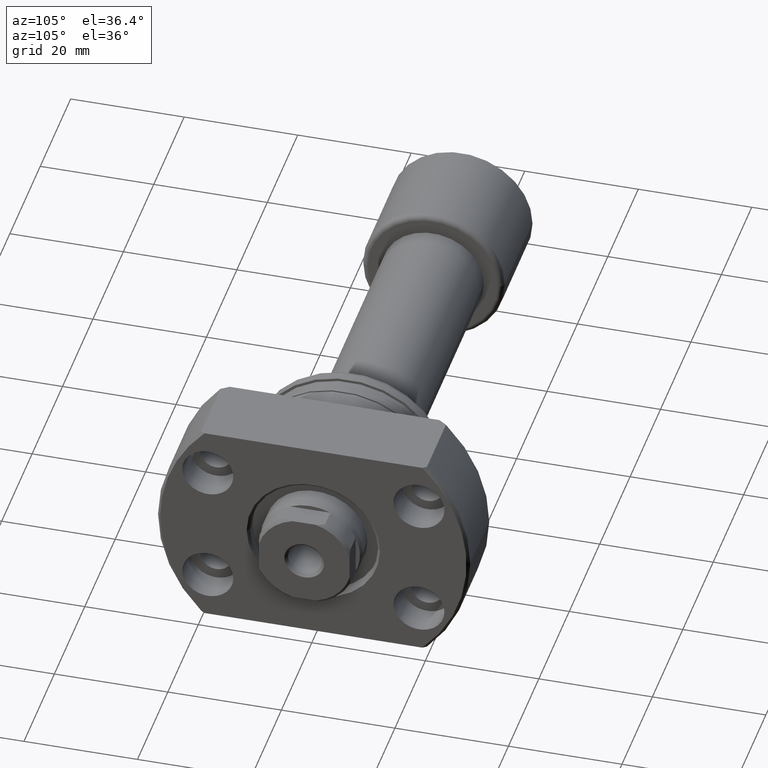
[diagram: clean part render]
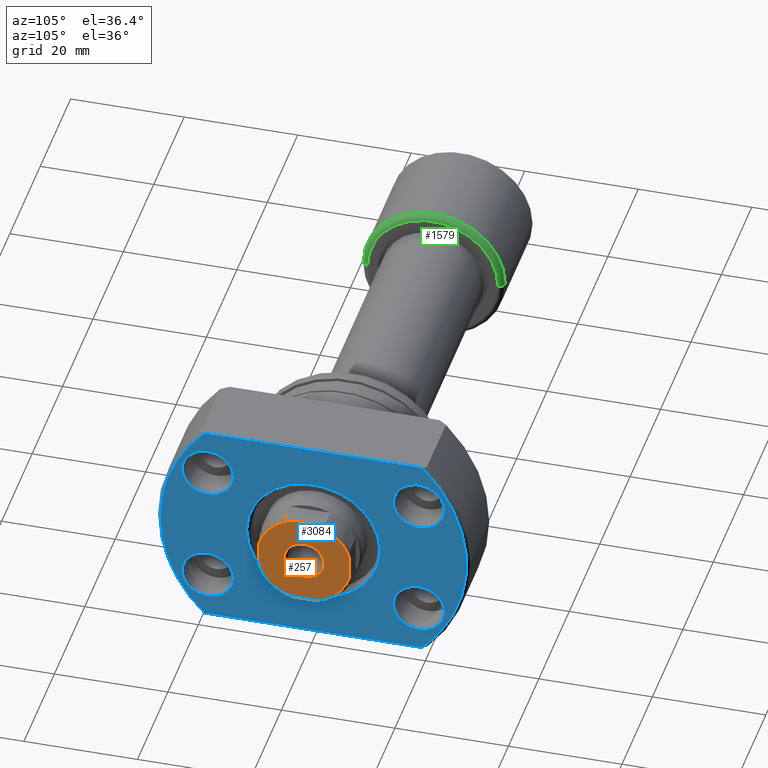
[diagram: same view with three faces highlighted in distinct colors, each labeled with its STEP entity id]
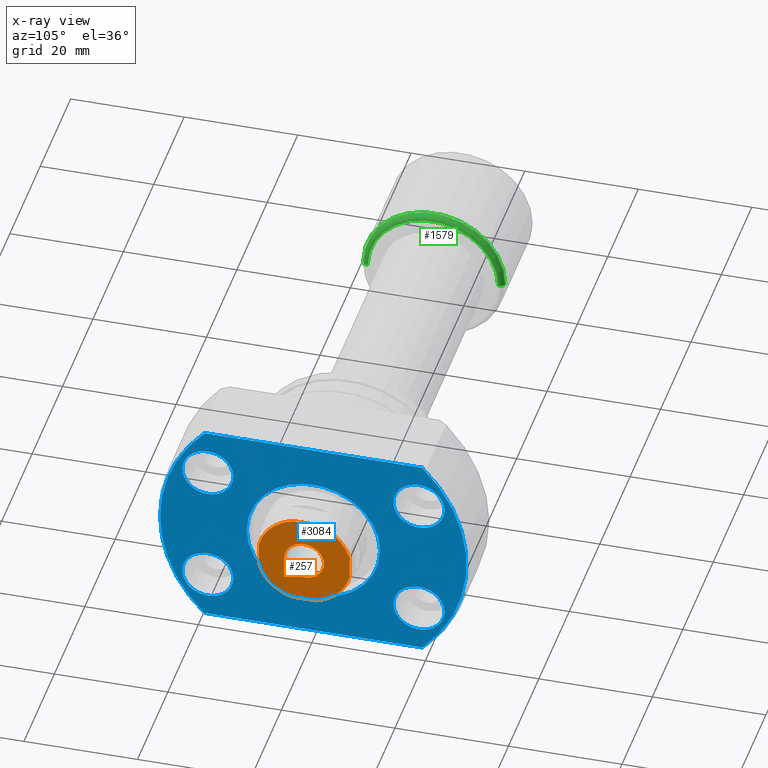
[diagram: x-ray of the same camera — body ghosted, the three highlighted faces saturated]
A machine part, auxiliary view with three faces highlighted in distinct colors.
The next image is the same camera in x-ray (body ghosted, the three faces saturated) — at least one of them is partly hidden behind the body in this view.
Their STEP definitions:

[orange] entity #257 — the highlighted planar face has unit normal (-1, -0, 0).
#7 = DIRECTION ( 'NONE',  ( 0.000000000000000000, -1.000000000000000000, 0.000000000000000000 ) ) ;
#100 = CARTESIAN_POINT ( 'NONE',  ( 105.0000000000000142, 2.015564437074592874, -8.000000000000000000 ) ) ;
#231 = EDGE_CURVE ( 'NONE', #1759, #914, #2962, .T. ) ;
#244 = CIRCLE ( 'NONE', #2367, 8.250000000000058620 ) ;
#257 = ADVANCED_FACE ( 'NONE', ( #2586, #3080 ), #2778, .F. ) ;
#260 = CARTESIAN_POINT ( 'NONE',  ( 104.9999999999999574, -2.015564437074657267, -8.000000000000001776 ) ) ;
#303 = CARTESIAN_POINT ( 'NONE',  ( 105.0000000000001279, 7.999999999998260058, 3.544361719689459456 ) ) ;
#304 = EDGE_LOOP ( 'NONE', ( #826, #1653, #1670, #2841, #1205, #2479, #573, #2881 ) ) ;
#356 = VERTEX_POINT ( 'NONE', #260 ) ;
#396 = VERTEX_POINT ( 'NONE', #2988 ) ;
#411 = ORIENTED_EDGE ( 'NONE', *, *, #934, .T. ) ;
#433 = CIRCLE ( 'NONE', #803, 8.249999999999987566 ) ;
#454 = CARTESIAN_POINT ( 'NONE',  ( 104.9999999999999858, -1.740128039466842086E-12, 0.000000000000000000 ) ) ;
#530 = DIRECTION ( 'NONE',  ( -1.000000000000000000, -1.069542322069065801E-17, 0.000000000000000000 ) ) ;
#567 = CARTESIAN_POINT ( 'NONE',  ( 104.9999999999999858, 1.123019438172518867E-15, 0.000000000000000000 ) ) ;
#573 = ORIENTED_EDGE ( 'NONE', *, *, #1849, .F. ) ;
#626 = CARTESIAN_POINT ( 'NONE',  ( 105.0000000000000426, 3.544361719687719958, -8.000000000000000000 ) ) ;
#668 = LINE ( 'NONE', #2658, #2839 ) ;
#715 = DIRECTION ( 'NONE',  ( 1.000000000000000000, 1.069542322069065801E-17, 0.000000000000000000 ) ) ;
#771 = CARTESIAN_POINT ( 'NONE',  ( 104.9999999999998437, -8.000000000001744382, 2.015564437067797421 ) ) ;
#776 = EDGE_CURVE ( 'NONE', #396, #1376, #244, .T. ) ;
#803 = AXIS2_PLACEMENT_3D ( 'NONE', #567, #2485, #1997 ) ;
#815 = CARTESIAN_POINT ( 'NONE',  ( 104.9999999999999858, 1.123019438172518867E-15, 0.000000000000000000 ) ) ;
#826 = ORIENTED_EDGE ( 'NONE', *, *, #2949, .F. ) ;
#853 = VECTOR ( 'NONE', #873, 1000.000000000000000 ) ;
#873 = DIRECTION ( 'NONE',  ( -1.566181886088483408E-14, -1.000000000000000000, -2.447159197013255325E-16 ) ) ;
#914 = VERTEX_POINT ( 'NONE', #3078 ) ;
#934 = EDGE_CURVE ( 'NONE', #914, #1759, #1865, .T. ) ;
#1010 = CARTESIAN_POINT ( 'NONE',  ( 105.0000000000001279, 7.999999999998261835, -2.015564437081499349 ) ) ;
#1021 = CARTESIAN_POINT ( 'NONE',  ( 105.0000000000000142, 2.015564437074881088, 8.000000000000001776 ) ) ;
#1056 = EDGE_CURVE ( 'NONE', #2276, #2868, #3064, .T. ) ;
#1066 = VERTEX_POINT ( 'NONE', #100 ) ;
#1205 = ORIENTED_EDGE ( 'NONE', *, *, #1771, .F. ) ;
#1261 = DIRECTION ( 'NONE',  ( -1.000000000000000000, -1.069542322069065801E-17, -0.000000000000000000 ) ) ;
#1331 = DIRECTION ( 'NONE',  ( 0.000000000000000000, -1.000000000000000000, 0.000000000000000000 ) ) ;
#1376 = VERTEX_POINT ( 'NONE', #1021 ) ;
#1480 = AXIS2_PLACEMENT_3D ( 'NONE', #815, #2323, #2840 ) ;
#1499 = AXIS2_PLACEMENT_3D ( 'NONE', #1615, #2148, #1587 ) ;
#1587 = DIRECTION ( 'NONE',  ( 0.000000000000000000, -1.000000000000000000, -8.881784197001252323E-16 ) ) ;
#1615 = CARTESIAN_POINT ( 'NONE',  ( 104.9999999999999858, 1.123019438172518867E-15, 0.000000000000000000 ) ) ;
#1653 = ORIENTED_EDGE ( 'NONE', *, *, #1868, .T. ) ;
#1663 = ORIENTED_EDGE ( 'NONE', *, *, #231, .T. ) ;
#1670 = ORIENTED_EDGE ( 'NONE', *, *, #2354, .F. ) ;
#1759 = VERTEX_POINT ( 'NONE', #2916 ) ;
#1771 = EDGE_CURVE ( 'NONE', #2276, #1376, #668, .T. ) ;
#1816 = CARTESIAN_POINT ( 'NONE',  ( 104.9999999999999858, -5.004653406798891484E-34, 0.000000000000000000 ) ) ;
#1849 = EDGE_CURVE ( 'NONE', #1938, #2868, #2012, .T. ) ;
#1865 = CIRCLE ( 'NONE', #2702, 3.500000000000347722 ) ;
#1868 = EDGE_CURVE ( 'NONE', #1066, #3212, #433, .T. ) ;
#1938 = VERTEX_POINT ( 'NONE', #2269 ) ;
#1951 = CARTESIAN_POINT ( 'NONE',  ( 104.9999999999999858, 1.123019438172518867E-15, 0.000000000000000000 ) ) ;
#1973 = DIRECTION ( 'NONE',  ( 0.000000000000000000, -1.000000000000000000, 1.776356839400250465E-15 ) ) ;
#1994 = CARTESIAN_POINT ( 'NONE',  ( 104.9999999999999574, -2.015564437074718107, 8.000000000000001776 ) ) ;
#1997 = DIRECTION ( 'NONE',  ( 0.000000000000000000, -1.000000000000000000, 0.000000000000000000 ) ) ;
#2005 = VECTOR ( 'NONE', #2978, 1000.000000000000000 ) ;
#2012 = LINE ( 'NONE', #2251, #3001 ) ;
#2097 = CIRCLE ( 'NONE', #1480, 8.250000000000005329 ) ;
#2107 = AXIS2_PLACEMENT_3D ( 'NONE', #454, #1261, #7 ) ;
#2148 = DIRECTION ( 'NONE',  ( 1.000000000000000000, 1.069542322069065801E-17, 0.000000000000000000 ) ) ;
#2251 = CARTESIAN_POINT ( 'NONE',  ( 104.9999999999998437, -8.000000000001740830, -3.544361719689460788 ) ) ;
#2269 = CARTESIAN_POINT ( 'NONE',  ( 104.9999999999999858, -8.000000000001740830, -2.015564437067741910 ) ) ;
#2274 = DIRECTION ( 'NONE',  ( -1.000000000000000000, -1.069542322069065801E-17, -0.000000000000000000 ) ) ;
#2276 = VERTEX_POINT ( 'NONE', #1994 ) ;
#2323 = DIRECTION ( 'NONE',  ( 1.000000000000000000, 1.069542322069065801E-17, 0.000000000000000000 ) ) ;
#2330 = EDGE_LOOP ( 'NONE', ( #1663, #411 ) ) ;
#2354 = EDGE_CURVE ( 'NONE', #396, #3212, #2541, .T. ) ;
#2367 = AXIS2_PLACEMENT_3D ( 'NONE', #1951, #715, #1973 ) ;
#2393 = EDGE_CURVE ( 'NONE', #1938, #356, #2097, .T. ) ;
#2437 = DIRECTION ( 'NONE',  ( 1.566181886088483408E-14, 1.000000000000000000, 2.447159197013255325E-16 ) ) ;
#2479 = ORIENTED_EDGE ( 'NONE', *, *, #1056, .T. ) ;
#2485 = DIRECTION ( 'NONE',  ( 1.000000000000000000, 1.069542322069065801E-17, 0.000000000000000000 ) ) ;
#2524 = DIRECTION ( 'NONE',  ( 1.069542322069065801E-17, -1.000000000000000000, 0.000000000000000000 ) ) ;
#2541 = LINE ( 'NONE', #303, #2005 ) ;
#2567 = CARTESIAN_POINT ( 'NONE',  ( 104.9999999999999858, -1.740128039466842086E-12, 0.000000000000000000 ) ) ;
#2586 = FACE_BOUND ( 'NONE', #2330, .T. ) ;
#2658 = CARTESIAN_POINT ( 'NONE',  ( 104.9999999999999289, -3.544361719691198953, 8.000000000000000000 ) ) ;
#2702 = AXIS2_PLACEMENT_3D ( 'NONE', #2567, #2274, #1331 ) ;
#2751 = DIRECTION ( 'NONE',  ( 0.000000000000000000, -4.894318394026510651E-16, 1.000000000000000000 ) ) ;
#2778 = PLANE ( 'NONE',  #2852 ) ;
#2839 = VECTOR ( 'NONE', #2437, 1000.000000000000000 ) ;
#2840 = DIRECTION ( 'NONE',  ( 0.000000000000000000, -1.000000000000000000, 0.000000000000000000 ) ) ;
#2841 = ORIENTED_EDGE ( 'NONE', *, *, #776, .T. ) ;
#2852 = AXIS2_PLACEMENT_3D ( 'NONE', #1816, #530, #2524 ) ;
#2863 = LINE ( 'NONE', #626, #853 ) ;
#2868 = VERTEX_POINT ( 'NONE', #771 ) ;
#2881 = ORIENTED_EDGE ( 'NONE', *, *, #2393, .T. ) ;
#2916 = CARTESIAN_POINT ( 'NONE',  ( 104.9999999999999858, 3.499999999998602451, 0.000000000000000000 ) ) ;
#2949 = EDGE_CURVE ( 'NONE', #1066, #356, #2863, .T. ) ;
#2962 = CIRCLE ( 'NONE', #2107, 3.500000000000347722 ) ;
#2978 = DIRECTION ( 'NONE',  ( 0.000000000000000000, 2.447159197013255325E-16, -1.000000000000000000 ) ) ;
#2988 = CARTESIAN_POINT ( 'NONE',  ( 104.9999999999999858, 7.999999999998260058, 2.015564437081796445 ) ) ;
#3001 = VECTOR ( 'NONE', #2751, 1000.000000000000000 ) ;
#3064 = CIRCLE ( 'NONE', #1499, 8.250000000000021316 ) ;
#3078 = CARTESIAN_POINT ( 'NONE',  ( 104.9999999999999858, -3.500000000002209788, 4.286263797016311477E-16 ) ) ;
#3080 = FACE_OUTER_BOUND ( 'NONE', #304, .T. ) ;
#3212 = VERTEX_POINT ( 'NONE', #1010 ) ;

[blue] entity #3084 — the highlighted planar face has unit normal (-1, -0, 0).
#12 = CARTESIAN_POINT ( 'NONE',  ( 26.50000000000000355, -19.18332609325086580, -19.00000000000001066 ) ) ;
#26 = CARTESIAN_POINT ( 'NONE',  ( 26.50000000000000355, -11.75000000000071054, 1.438959988998140752E-15 ) ) ;
#45 = AXIS2_PLACEMENT_3D ( 'NONE', #2413, #199, #371 ) ;
#60 = DIRECTION ( 'NONE',  ( -0.000000000000000000, 1.000000000000000000, 0.000000000000000000 ) ) ;
#66 = ORIENTED_EDGE ( 'NONE', *, *, #1732, .F. ) ;
#164 = DIRECTION ( 'NONE',  ( -9.242617352055502386E-18, 1.000000000000000000, -0.000000000000000000 ) ) ;
#178 = ORIENTED_EDGE ( 'NONE', *, *, #3205, .F. ) ;
#179 = DIRECTION ( 'NONE',  ( 1.000000000000000000, -2.883293662278287419E-14, -3.155443620884046521E-30 ) ) ;
#190 = VERTEX_POINT ( 'NONE', #2623 ) ;
#199 = DIRECTION ( 'NONE',  ( 1.000000000000000000, -2.886466111666351885E-14, 0.000000000000000000 ) ) ;
#216 = EDGE_CURVE ( 'NONE', #1336, #835, #3162, .T. ) ;
#227 = DIRECTION ( 'NONE',  ( -1.000000000000000000, -9.242617352055502386E-18, 0.000000000000000000 ) ) ;
#233 = AXIS2_PLACEMENT_3D ( 'NONE', #1159, #227, #1203 ) ;
#296 = AXIS2_PLACEMENT_3D ( 'NONE', #1379, #1143, #3166 ) ;
#297 = LINE ( 'NONE', #1999, #578 ) ;
#298 = CARTESIAN_POINT ( 'NONE',  ( 26.50000000000000355, 2.449293598294708386E-16, 0.000000000000000000 ) ) ;
#335 = CIRCLE ( 'NONE', #2575, 4.500000000000000888 ) ;
#348 = ORIENTED_EDGE ( 'NONE', *, *, #2205, .T. ) ;
#371 = DIRECTION ( 'NONE',  ( 2.852656382717415620E-14, 1.000000000000000000, 0.000000000000000000 ) ) ;
#374 = CARTESIAN_POINT ( 'NONE',  ( 26.49999999999959499, -14.10000000000076881, -10.75000000000000000 ) ) ;
#400 = VERTEX_POINT ( 'NONE', #1257 ) ;
#401 = CARTESIAN_POINT ( 'NONE',  ( 26.49999999999946354, -18.60000000000076881, 10.75000000000000000 ) ) ;
#416 = FACE_BOUND ( 'NONE', #1969, .T. ) ;
#436 = EDGE_LOOP ( 'NONE', ( #620, #678 ) ) ;
#467 = CARTESIAN_POINT ( 'NONE',  ( 26.50000000000000355, 2.449293598294708386E-16, 0.000000000000000000 ) ) ;
#517 = EDGE_LOOP ( 'NONE', ( #1780, #178 ) ) ;
#529 = DIRECTION ( 'NONE',  ( 1.000000000000000000, -2.883293662278287419E-14, -3.155443620884046521E-30 ) ) ;
#552 = DIRECTION ( 'NONE',  ( 1.000000000000000000, -2.883293662278287419E-14, -3.155443620884046521E-30 ) ) ;
#566 = EDGE_CURVE ( 'NONE', #1413, #1120, #1809, .T. ) ;
#578 = VECTOR ( 'NONE', #60, 1000.000000000000000 ) ;
#581 = EDGE_CURVE ( 'NONE', #2255, #964, #2168, .T. ) ;
#620 = ORIENTED_EDGE ( 'NONE', *, *, #2293, .F. ) ;
#638 = DIRECTION ( 'NONE',  ( 1.000000000000000000, -2.883293662278287419E-14, -3.155443620884046521E-30 ) ) ;
#643 = DIRECTION ( 'NONE',  ( 9.242617352055502386E-18, -1.000000000000000000, 0.000000000000000000 ) ) ;
#678 = ORIENTED_EDGE ( 'NONE', *, *, #581, .F. ) ;
#688 = EDGE_CURVE ( 'NONE', #1418, #3177, #766, .T. ) ;
#707 = EDGE_CURVE ( 'NONE', #400, #2825, #2905, .T. ) ;
#747 = CARTESIAN_POINT ( 'NONE',  ( 26.50000000000041211, 14.09999999999923403, -10.75000000000000000 ) ) ;
#766 = CIRCLE ( 'NONE', #296, 11.74999999999932498 ) ;
#784 = DIRECTION ( 'NONE',  ( 0.000000000000000000, 1.000000000000000000, 0.000000000000000000 ) ) ;
#789 = CARTESIAN_POINT ( 'NONE',  ( 26.49999999999959499, -14.10000000000076881, 10.75000000000000000 ) ) ;
#808 = CARTESIAN_POINT ( 'NONE',  ( 26.50000000000066791, 23.09999999999923403, 10.75000000000000000 ) ) ;
#823 = DIRECTION ( 'NONE',  ( 1.000000000000000000, 9.242617352055502386E-18, -0.000000000000000000 ) ) ;
#834 = DIRECTION ( 'NONE',  ( 2.852656382717415620E-14, 1.000000000000000000, 0.000000000000000000 ) ) ;
#835 = VERTEX_POINT ( 'NONE', #2196 ) ;
#836 = DIRECTION ( 'NONE',  ( 1.000000000000000000, 9.242617352055502386E-18, -0.000000000000000000 ) ) ;
#858 = AXIS2_PLACEMENT_3D ( 'NONE', #467, #1767, #784 ) ;
#913 = ORIENTED_EDGE ( 'NONE', *, *, #950, .T. ) ;
#924 = CIRCLE ( 'NONE', #1814, 27.00000000000000000 ) ;
#933 = CARTESIAN_POINT ( 'NONE',  ( 26.50000000000041211, 14.09999999999923403, 10.75000000000000000 ) ) ;
#950 = EDGE_CURVE ( 'NONE', #835, #1828, #1764, .T. ) ;
#964 = VERTEX_POINT ( 'NONE', #808 ) ;
#978 = AXIS2_PLACEMENT_3D ( 'NONE', #2589, #552, #3057 ) ;
#1013 = EDGE_CURVE ( 'NONE', #190, #3083, #924, .T. ) ;
#1033 = CARTESIAN_POINT ( 'NONE',  ( 26.50000000000054001, 18.59999999999923403, 10.75000000000000000 ) ) ;
#1048 = DIRECTION ( 'NONE',  ( 2.852656382717415620E-14, 1.000000000000000000, 0.000000000000000000 ) ) ;
#1069 = CIRCLE ( 'NONE', #233, 11.74999999999932498 ) ;
#1120 = VERTEX_POINT ( 'NONE', #374 ) ;
#1143 = DIRECTION ( 'NONE',  ( -1.000000000000000000, -9.242617352055502386E-18, 0.000000000000000000 ) ) ;
#1158 = CARTESIAN_POINT ( 'NONE',  ( 26.50000000000000355, 11.74999999999861622, 0.000000000000000000 ) ) ;
#1159 = CARTESIAN_POINT ( 'NONE',  ( 26.50000000000000355, -7.069515144664183387E-13, 0.000000000000000000 ) ) ;
#1175 = CIRCLE ( 'NONE', #2681, 4.500000000000000888 ) ;
#1203 = DIRECTION ( 'NONE',  ( 0.000000000000000000, -1.000000000000000000, 0.000000000000000000 ) ) ;
#1214 = CARTESIAN_POINT ( 'NONE',  ( 26.50000000000000355, 19.18332609325086935, 19.00000000000000711 ) ) ;
#1257 = CARTESIAN_POINT ( 'NONE',  ( 26.49999999999933564, -23.10000000000076881, 10.75000000000000000 ) ) ;
#1282 = CARTESIAN_POINT ( 'NONE',  ( 26.50000000000066791, 23.09999999999923403, -10.75000000000000000 ) ) ;
#1283 = AXIS2_PLACEMENT_3D ( 'NONE', #2430, #1382, #643 ) ;
#1336 = VERTEX_POINT ( 'NONE', #2786 ) ;
#1379 = CARTESIAN_POINT ( 'NONE',  ( 26.50000000000000355, -7.069515144664183387E-13, 0.000000000000000000 ) ) ;
#1380 = ORIENTED_EDGE ( 'NONE', *, *, #566, .F. ) ;
#1382 = DIRECTION ( 'NONE',  ( -1.000000000000000000, -9.242617352055502386E-18, 0.000000000000000000 ) ) ;
#1398 = FACE_BOUND ( 'NONE', #2657, .T. ) ;
#1404 = EDGE_CURVE ( 'NONE', #1336, #3083, #297, .T. ) ;
#1413 = VERTEX_POINT ( 'NONE', #2285 ) ;
#1418 = VERTEX_POINT ( 'NONE', #26 ) ;
#1419 = VERTEX_POINT ( 'NONE', #1282 ) ;
#1434 = FACE_OUTER_BOUND ( 'NONE', #2666, .T. ) ;
#1447 = ORIENTED_EDGE ( 'NONE', *, *, #1404, .F. ) ;
#1479 = CARTESIAN_POINT ( 'NONE',  ( 26.50000000000054001, 18.59999999999923403, -10.75000000000000000 ) ) ;
#1529 = DIRECTION ( 'NONE',  ( 2.852656382717415620E-14, 1.000000000000000000, 0.000000000000000000 ) ) ;
#1565 = EDGE_CURVE ( 'NONE', #1120, #1413, #2885, .T. ) ;
#1598 = CARTESIAN_POINT ( 'NONE',  ( 26.49999999999946354, -18.60000000000076881, -10.75000000000000000 ) ) ;
#1652 = CARTESIAN_POINT ( 'NONE',  ( 26.50000000000000355, -27.00000000000000000, -19.00000000000001066 ) ) ;
#1683 = EDGE_CURVE ( 'NONE', #1419, #2349, #2634, .T. ) ;
#1696 = VECTOR ( 'NONE', #164, 1000.000000000000000 ) ;
#1704 = DIRECTION ( 'NONE',  ( 2.852656382717415620E-14, 1.000000000000000000, 0.000000000000000000 ) ) ;
#1732 = EDGE_CURVE ( 'NONE', #2825, #400, #2504, .T. ) ;
#1739 = AXIS2_PLACEMENT_3D ( 'NONE', #1963, #179, #2968 ) ;
#1764 = CIRCLE ( 'NONE', #3170, 27.00000000000000000 ) ;
#1767 = DIRECTION ( 'NONE',  ( 1.000000000000000000, 9.242617352055502386E-18, -0.000000000000000000 ) ) ;
#1780 = ORIENTED_EDGE ( 'NONE', *, *, #1683, .F. ) ;
#1786 = ORIENTED_EDGE ( 'NONE', *, *, #688, .T. ) ;
#1809 = CIRCLE ( 'NONE', #978, 4.500000000000000888 ) ;
#1814 = AXIS2_PLACEMENT_3D ( 'NONE', #298, #823, #1824 ) ;
#1824 = DIRECTION ( 'NONE',  ( 0.000000000000000000, 1.000000000000000000, 0.000000000000000000 ) ) ;
#1828 = VERTEX_POINT ( 'NONE', #12 ) ;
#1892 = FACE_BOUND ( 'NONE', #517, .T. ) ;
#1893 = AXIS2_PLACEMENT_3D ( 'NONE', #1598, #2328, #834 ) ;
#1940 = DIRECTION ( 'NONE',  ( 1.000000000000000000, -2.883293662278287419E-14, -3.155443620884046521E-30 ) ) ;
#1963 = CARTESIAN_POINT ( 'NONE',  ( 26.49999999999946354, -18.60000000000076881, 10.75000000000000000 ) ) ;
#1969 = EDGE_LOOP ( 'NONE', ( #348, #1786 ) ) ;
#1999 = CARTESIAN_POINT ( 'NONE',  ( 26.50000000000000355, 19.88089535207168623, 19.00000000000001066 ) ) ;
#2020 = AXIS2_PLACEMENT_3D ( 'NONE', #401, #638, #3093 ) ;
#2030 = ORIENTED_EDGE ( 'NONE', *, *, #2519, .T. ) ;
#2168 = CIRCLE ( 'NONE', #45, 4.500000000000000888 ) ;
#2196 = CARTESIAN_POINT ( 'NONE',  ( 26.50000000000000355, -27.00000000000000355, 0.000000000000000000 ) ) ;
#2198 = FACE_BOUND ( 'NONE', #2491, .T. ) ;
#2205 = EDGE_CURVE ( 'NONE', #3177, #1418, #1069, .T. ) ;
#2255 = VERTEX_POINT ( 'NONE', #933 ) ;
#2285 = CARTESIAN_POINT ( 'NONE',  ( 26.49999999999933564, -23.10000000000076881, -10.75000000000000000 ) ) ;
#2293 = EDGE_CURVE ( 'NONE', #964, #2255, #1175, .T. ) ;
#2328 = DIRECTION ( 'NONE',  ( 1.000000000000000000, -2.883293662278287419E-14, -3.155443620884046521E-30 ) ) ;
#2349 = VERTEX_POINT ( 'NONE', #747 ) ;
#2395 = ORIENTED_EDGE ( 'NONE', *, *, #216, .T. ) ;
#2413 = CARTESIAN_POINT ( 'NONE',  ( 26.50000000000054001, 18.59999999999923403, 10.75000000000000000 ) ) ;
#2430 = CARTESIAN_POINT ( 'NONE',  ( 26.50000000000000355, -27.00000000000000000, 0.000000000000000000 ) ) ;
#2467 = CARTESIAN_POINT ( 'NONE',  ( 26.50000000000054001, 18.59999999999923403, -10.75000000000000000 ) ) ;
#2491 = EDGE_LOOP ( 'NONE', ( #66, #3027 ) ) ;
#2504 = CIRCLE ( 'NONE', #1739, 4.500000000000000888 ) ;
#2519 = EDGE_CURVE ( 'NONE', #1828, #190, #2862, .T. ) ;
#2535 = CARTESIAN_POINT ( 'NONE',  ( 26.50000000000000355, 2.449293598294708386E-16, 0.000000000000000000 ) ) ;
#2575 = AXIS2_PLACEMENT_3D ( 'NONE', #1479, #529, #1529 ) ;
#2589 = CARTESIAN_POINT ( 'NONE',  ( 26.49999999999946354, -18.60000000000076881, -10.75000000000000000 ) ) ;
#2621 = PLANE ( 'NONE',  #1283 ) ;
#2623 = CARTESIAN_POINT ( 'NONE',  ( 26.50000000000000355, 19.18332609325086580, -19.00000000000001066 ) ) ;
#2634 = CIRCLE ( 'NONE', #2748, 4.500000000000000888 ) ;
#2657 = EDGE_LOOP ( 'NONE', ( #3105, #1380 ) ) ;
#2666 = EDGE_LOOP ( 'NONE', ( #1447, #2395, #913, #2030, #2926 ) ) ;
#2681 = AXIS2_PLACEMENT_3D ( 'NONE', #1033, #2797, #1048 ) ;
#2748 = AXIS2_PLACEMENT_3D ( 'NONE', #2467, #1940, #1704 ) ;
#2786 = CARTESIAN_POINT ( 'NONE',  ( 26.50000000000000355, -19.18332609325086224, 19.00000000000000711 ) ) ;
#2797 = DIRECTION ( 'NONE',  ( 1.000000000000000000, -2.886466111666351885E-14, 0.000000000000000000 ) ) ;
#2810 = DIRECTION ( 'NONE',  ( 0.000000000000000000, 1.000000000000000000, 0.000000000000000000 ) ) ;
#2825 = VERTEX_POINT ( 'NONE', #789 ) ;
#2862 = LINE ( 'NONE', #1652, #1696 ) ;
#2885 = CIRCLE ( 'NONE', #1893, 4.500000000000000888 ) ;
#2905 = CIRCLE ( 'NONE', #2020, 4.500000000000000888 ) ;
#2926 = ORIENTED_EDGE ( 'NONE', *, *, #1013, .T. ) ;
#2968 = DIRECTION ( 'NONE',  ( 2.852656382717415620E-14, 1.000000000000000000, 0.000000000000000000 ) ) ;
#3027 = ORIENTED_EDGE ( 'NONE', *, *, #707, .F. ) ;
#3057 = DIRECTION ( 'NONE',  ( 2.852656382717415620E-14, 1.000000000000000000, 0.000000000000000000 ) ) ;
#3083 = VERTEX_POINT ( 'NONE', #1214 ) ;
#3084 = ADVANCED_FACE ( 'NONE', ( #416, #3184, #2198, #1398, #1892, #1434 ), #2621, .F. ) ;
#3093 = DIRECTION ( 'NONE',  ( 2.852656382717415620E-14, 1.000000000000000000, 0.000000000000000000 ) ) ;
#3105 = ORIENTED_EDGE ( 'NONE', *, *, #1565, .F. ) ;
#3162 = CIRCLE ( 'NONE', #858, 27.00000000000000000 ) ;
#3166 = DIRECTION ( 'NONE',  ( 0.000000000000000000, -1.000000000000000000, 0.000000000000000000 ) ) ;
#3170 = AXIS2_PLACEMENT_3D ( 'NONE', #2535, #836, #2810 ) ;
#3177 = VERTEX_POINT ( 'NONE', #1158 ) ;
#3184 = FACE_BOUND ( 'NONE', #436, .T. ) ;
#3205 = EDGE_CURVE ( 'NONE', #2349, #1419, #335, .T. ) ;

[green] entity #1579 — the highlighted toroidal blend (fillet) surface has major radius 11.5 mm and minor (blend) radius 1 mm.
#218 = CARTESIAN_POINT ( 'NONE',  ( 19.39999999999999503, -11.50000000000000000, 0.000000000000000000 ) ) ;
#232 = DIRECTION ( 'NONE',  ( -1.000000000000000000, 0.000000000000000000, 0.000000000000000000 ) ) ;
#259 = DIRECTION ( 'NONE',  ( -1.000000000000000000, -1.069542322069065801E-17, -0.000000000000000000 ) ) ;
#347 = CARTESIAN_POINT ( 'NONE',  ( 20.39999999999999503, 11.50000000000000000, 1.469576158976823947E-15 ) ) ;
#382 = CIRCLE ( 'NONE', #963, 11.50000000000000000 ) ;
#418 = DIRECTION ( 'NONE',  ( 1.309811581274509052E-33, -1.224646799147353207E-16, 1.000000000000000000 ) ) ;
#478 = TOROIDAL_SURFACE ( 'NONE', #893, 11.50000000000000000, 1.000000000000000888 ) ;
#500 = CIRCLE ( 'NONE', #2636, 12.50000000000000000 ) ;
#598 = AXIS2_PLACEMENT_3D ( 'NONE', #218, #1219, #232 ) ;
#810 = EDGE_CURVE ( 'NONE', #1407, #1774, #500, .T. ) ;
#893 = AXIS2_PLACEMENT_3D ( 'NONE', #2357, #1103, #2831 ) ;
#945 = CARTESIAN_POINT ( 'NONE',  ( 19.39999999999999503, 2.074912104813986935E-16, 0.000000000000000000 ) ) ;
#963 = AXIS2_PLACEMENT_3D ( 'NONE', #2243, #2984, #1473 ) ;
#1071 = ORIENTED_EDGE ( 'NONE', *, *, #1684, .F. ) ;
#1089 = VERTEX_POINT ( 'NONE', #347 ) ;
#1103 = DIRECTION ( 'NONE',  ( -1.000000000000000000, -1.069542322069065801E-17, -0.000000000000000000 ) ) ;
#1183 = CARTESIAN_POINT ( 'NONE',  ( 19.39999999999999503, 12.50000000000000000, 1.530808498934191521E-15 ) ) ;
#1219 = DIRECTION ( 'NONE',  ( 0.000000000000000000, 0.000000000000000000, -1.000000000000000000 ) ) ;
#1407 = VERTEX_POINT ( 'NONE', #2500 ) ;
#1473 = DIRECTION ( 'NONE',  ( 0.000000000000000000, -1.000000000000000000, 0.000000000000000000 ) ) ;
#1579 = ADVANCED_FACE ( 'NONE', ( #3120 ), #478, .T. ) ;
#1684 = EDGE_CURVE ( 'NONE', #3131, #1407, #2165, .T. ) ;
#1737 = ORIENTED_EDGE ( 'NONE', *, *, #2598, .T. ) ;
#1774 = VERTEX_POINT ( 'NONE', #1183 ) ;
#1937 = DIRECTION ( 'NONE',  ( 0.000000000000000000, -1.000000000000000000, -1.224646799147353454E-16 ) ) ;
#1953 = CARTESIAN_POINT ( 'NONE',  ( 20.39999999999999503, -11.50000000000000000, 0.000000000000000000 ) ) ;
#2041 = ORIENTED_EDGE ( 'NONE', *, *, #810, .F. ) ;
#2165 = CIRCLE ( 'NONE', #598, 1.000000000000000888 ) ;
#2182 = EDGE_CURVE ( 'NONE', #1089, #1774, #2356, .T. ) ;
#2200 = CARTESIAN_POINT ( 'NONE',  ( 19.39999999999999503, 11.50000000000000000, 1.408343819019456176E-15 ) ) ;
#2219 = ORIENTED_EDGE ( 'NONE', *, *, #2182, .T. ) ;
#2243 = CARTESIAN_POINT ( 'NONE',  ( 20.39999999999999503, 2.181866337020893623E-16, 0.000000000000000000 ) ) ;
#2356 = CIRCLE ( 'NONE', #2948, 1.000000000000000888 ) ;
#2357 = CARTESIAN_POINT ( 'NONE',  ( 19.39999999999999503, 0.000000000000000000, 0.000000000000000000 ) ) ;
#2500 = CARTESIAN_POINT ( 'NONE',  ( 19.39999999999999503, -12.50000000000000000, 0.000000000000000000 ) ) ;
#2598 = EDGE_CURVE ( 'NONE', #3131, #1089, #382, .T. ) ;
#2636 = AXIS2_PLACEMENT_3D ( 'NONE', #945, #259, #2958 ) ;
#2699 = EDGE_LOOP ( 'NONE', ( #1737, #2219, #2041, #1071 ) ) ;
#2831 = DIRECTION ( 'NONE',  ( 1.069542322069065955E-17, -1.000000000000000000, 0.000000000000000000 ) ) ;
#2948 = AXIS2_PLACEMENT_3D ( 'NONE', #2200, #418, #1937 ) ;
#2958 = DIRECTION ( 'NONE',  ( 0.000000000000000000, -1.000000000000000000, 0.000000000000000000 ) ) ;
#2984 = DIRECTION ( 'NONE',  ( -1.000000000000000000, -1.069542322069065801E-17, -0.000000000000000000 ) ) ;
#3120 = FACE_OUTER_BOUND ( 'NONE', #2699, .T. ) ;
#3131 = VERTEX_POINT ( 'NONE', #1953 ) ;